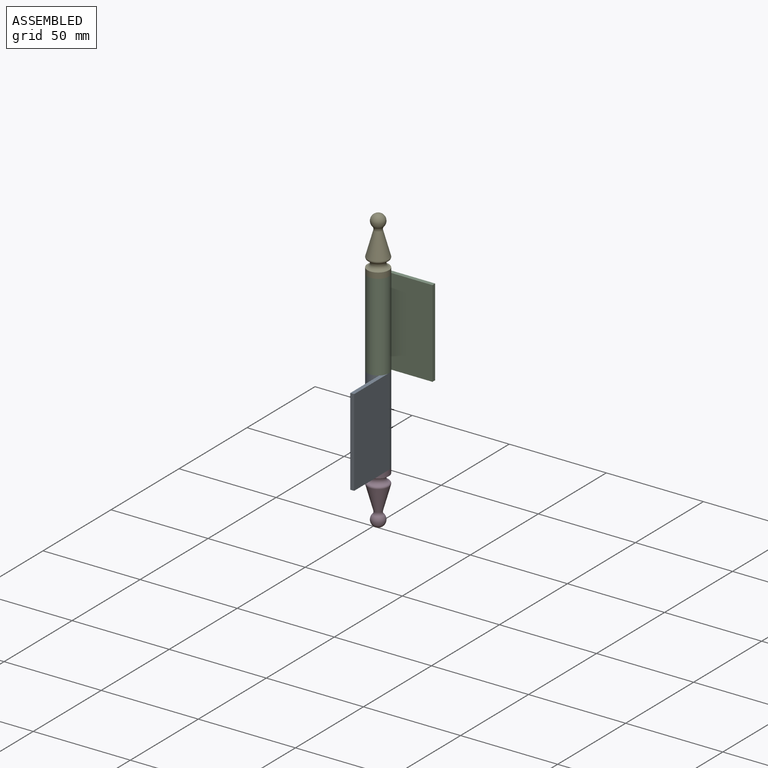
[diagram: assembled view]
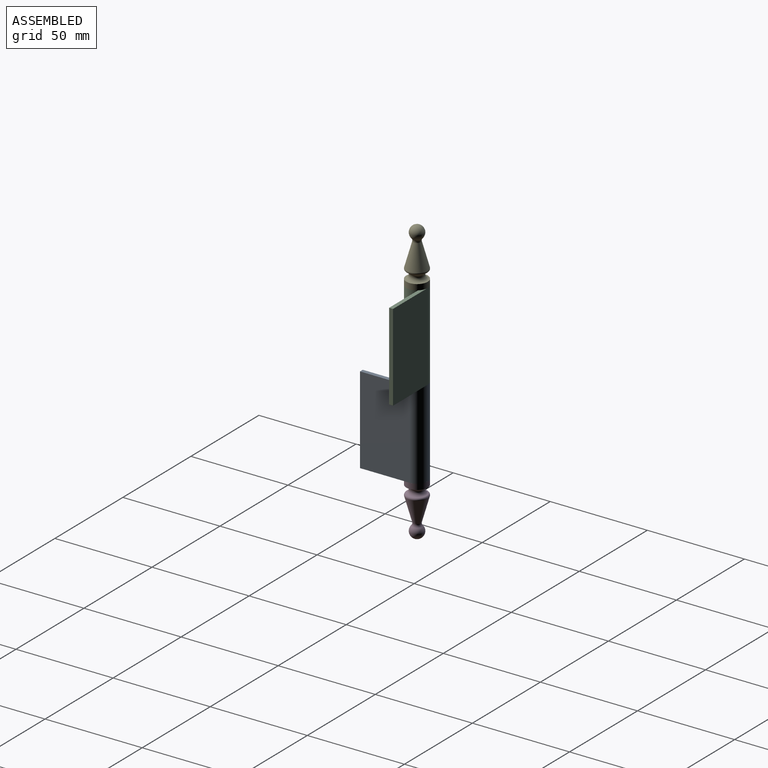
[diagram: assembled view, second angle]
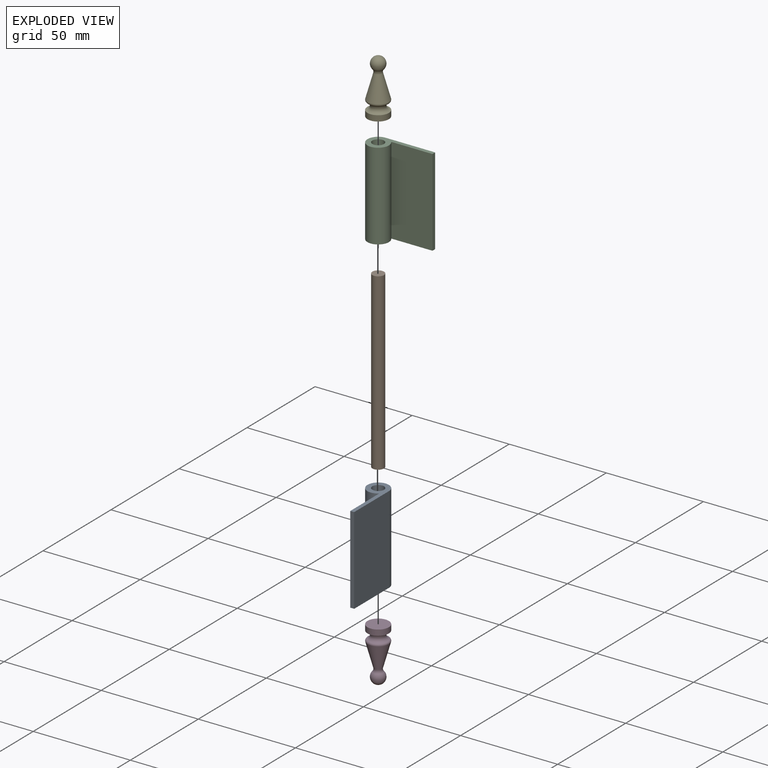
[diagram: exploded view]
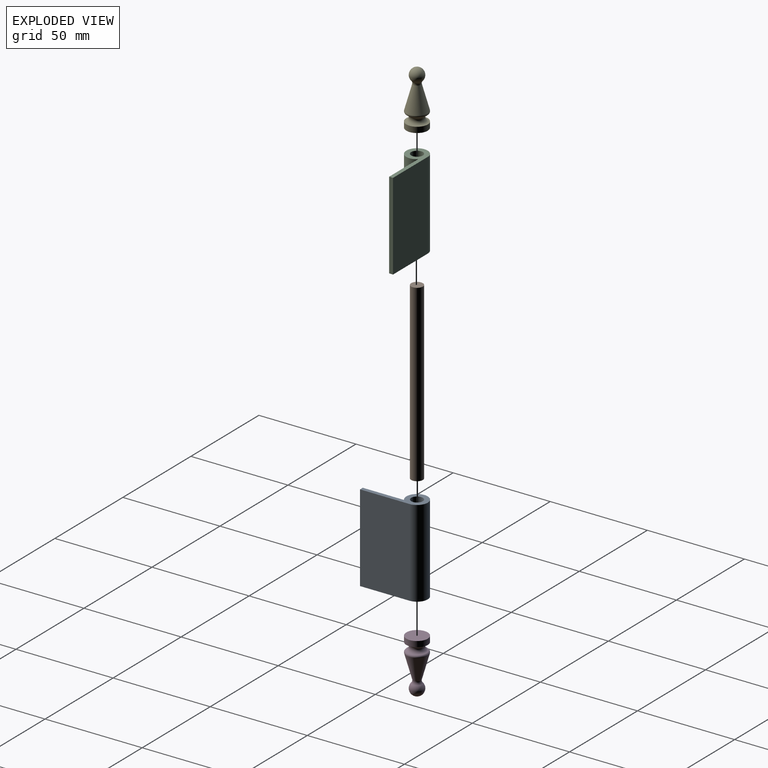
[diagram: exploded view, second angle]
FCSTD DOCUMENT  (FreeCAD 2022.709R28846 (Git))
Label: fischband_assembly
License: All rights reserved
LicenseURL: http://en.wikipedia.org/wiki/All_rights_reserved
objects: Part::FeaturePython×21, App::FeaturePython×14, App::Link×5
note: 20 computed .brp shape members not serialized (recipe doc carries the construction recipe); baked Part::Feature solids carry a one-line shape summary decoded from their .brp
EXTERNAL_REF file=fischband_fluegel.FCStd obj=Body
EXTERNAL_REF file=fischband_pin.FCStd obj=Body
EXTERNAL_REF file=fischband_zierelement.FCStd obj=Body

FEATURE [App::Link] Link  label="band_rahmen"
  AutoLinkLabel = true
  AutoPlacement = true
  LinkPlacement = pos=(45,18,0) rot=(0,0,1;4.71239rad)
  LinkedObject = -> <external fischband_fluegel.FCStd>#Body
  Placement = pos=(45,18,0) rot=(0,0,1;4.71239rad)
  ShowElement = false
  SyncGroupVisibility = false
  TreeRank = 1
  _LinkVersion = 1
FEATURE [App::Link] Link001  label="Link001(Body)"
  AutoLinkLabel = true
  AutoPlacement = true
  LinkPlacement = pos=(45,18,0) rot=(0,0,1;0rad)
  LinkedObject = -> <external fischband_pin.FCStd>#Body
  Placement = pos=(45,18,0) rot=(0,0,1;0rad)
  ShowElement = false
  SyncGroupVisibility = false
  TreeRank = 2
  _LinkVersion = 1
FEATURE [App::Link] Link002  label="band_fenster"
  AutoLinkLabel = true
  AutoPlacement = true
  LinkPlacement = pos=(45,18,45) rot=(0,0,1;0rad)
  LinkedObject = -> <external fischband_fluegel.FCStd>#Body
  Placement = pos=(45,18,45) rot=(0,0,1;0rad)
  ShowElement = false
  SyncGroupVisibility = false
  TreeRank = 32
  _LinkVersion = 1
FEATURE [App::Link] Link003  label="zierelement_unten"
  AutoLinkLabel = false
  AutoPlacement = true
  LinkPlacement = pos=(45,18,0) rot=(0,0,1;0rad)
  LinkedObject = -> <external fischband_zierelement.FCStd>#Body
  Placement = pos=(45,18,0) rot=(0,0,1;0rad)
  ShowElement = false
  SyncGroupVisibility = false
  TreeRank = 52
  _LinkOwner = 4058
  _LinkVersion = 1
FEATURE [App::Link] Link004  label="zierelement_oben"
  AutoLinkLabel = true
  AutoPlacement = true
  LinkPlacement = pos=(45,18,90) rot=(-1,0,0;3.14159rad)
  LinkedObject = -> <external fischband_zierelement.FCStd>#Body
  Placement = pos=(45,18,90) rot=(-1,0,0;3.14159rad)
  ShowElement = false
  SyncGroupVisibility = false
  TreeRank = 72
  _LinkVersion = 1
FEATURE [Part::FeaturePython] Parts  # WARN: FeaturePython — macro-defined, semantics opaque (R4)
  Group = -> [Link001,Link,Link002,Link003,Link004]
  GroupMode = 0
  TreeRank = 0
  _LinkVersion = 1
FEATURE [Part::FeaturePython] Assembly  # WARN: FeaturePython — macro-defined, semantics opaque (R4)
  AutoRelax = true
  BuildShape = 0
  Freeze = false
  Group = -> [Constraints,Elements,Parts]
  TreeRank = 0
  Verbose = false
  _LinkVersion = 1
  _SolverType = 1
  _Version = 1
FEATURE [App::FeaturePython] Constraints  # WARN: FeaturePython — macro-defined, semantics opaque (R4)
  Group = -> [Constraint001,Constraint002,Constraint003,Constraint004]
  TreeRank = 0
  _LinkVersion = 1
  _Version = 1
FEATURE [App::FeaturePython] Elements  # WARN: FeaturePython — macro-defined, semantics opaque (R4)
  Group = -> [_Element001,_Element002,_Element004,_Element005,_Element,_Element006,_Element007,_Element008,_Element009,_Element010,_Element011,Element,Element001,Element002,Element003,Element004,Element005,Element006,Element007]
  TreeRank = 0
  _LinkVersion = 1
FEATURE [Part::FeaturePython] _Element001  # link proxy (typed FeaturePython)
  Detach = false
  LinkTransform = true
  LinkedObject = -> Link001 [Pad.Edge2]
  TreeRank = 14
  _LinkVersion = 1
  _Parent = -> Elements
FEATURE [Part::FeaturePython] _Element002  # link proxy (typed FeaturePython)
  Detach = false
  LinkTransform = true
  LinkedObject = -> Link [Pad.Edge14]
  TreeRank = 15
  _LinkVersion = 1
  _Parent = -> Elements
FEATURE [Part::FeaturePython] _Element004  # WARN: FeaturePython — macro-defined, semantics opaque (R4)
  Detach = false
  LinkTransform = true
  TreeRank = 31
  _LinkVersion = 1
  _Parent = -> Elements
FEATURE [Part::FeaturePython] _Element005  # link proxy (typed FeaturePython)
  Detach = false
  LinkTransform = true
  LinkedObject = -> Link002 [Pad.Edge15]
  TreeRank = 38
  _LinkVersion = 1
  _Parent = -> Elements
FEATURE [Part::FeaturePython] _Element  # link proxy (typed FeaturePython)
  Detach = false
  LinkTransform = true
  LinkedObject = -> Link002 [Pad.Edge14]
  TreeRank = 55
  _LinkVersion = 1
  _Parent = -> Elements
FEATURE [Part::FeaturePython] _Element006  # link proxy (typed FeaturePython)
  Detach = false
  LinkTransform = true
  LinkedObject = -> Link001 [Pad.Edge3]
  TreeRank = 57
  _LinkVersion = 1
  _Parent = -> Elements
FEATURE [Part::FeaturePython] _Element007  # link proxy (typed FeaturePython)
  Detach = false
  LinkTransform = true
  LinkedObject = -> Link001 [Pad.Face1]
  TreeRank = 60
  _LinkVersion = 1
  _Parent = -> Elements
FEATURE [App::FeaturePython] Constraint001  label="PlaneCoincident"  # WARN: FeaturePython — macro-defined, semantics opaque (R4)
  Angle = 0
  AnglePitch = 0
  AngleRoll = 0
  Cascade = false
  Disabled = false
  Group = -> [ElementLink001,ElementLink002]
  LockAngle = false
  Multiply = false
  OffsetX = 0
  OffsetY = 0
  TreeRank = 61
  _ConstraintType = 35
  _LinkVersion = 1
  _Parent = -> Constraints
FEATURE [App::FeaturePython] ElementLink001  label="_Element001"  # link proxy (typed FeaturePython)
  LinkTransform = true
  LinkedObject = -> _Element001
  TreeRank = 62
  _LinkVersion = 1
  _Parent = -> Constraint001
FEATURE [App::FeaturePython] ElementLink002  label="_Element002"  # link proxy (typed FeaturePython)
  LinkTransform = true
  LinkedObject = -> _Element002
  TreeRank = 63
  _LinkVersion = 1
  _Parent = -> Constraint001
FEATURE [App::FeaturePython] Constraint002  label="PlaneCoincident001"  # WARN: FeaturePython — macro-defined, semantics opaque (R4)
  Angle = 0
  AnglePitch = 0
  AngleRoll = 0
  Cascade = false
  Disabled = false
  Group = -> [ElementLink003,ElementLink004]
  LockAngle = false
  Multiply = false
  OffsetX = 0
  OffsetY = 0
  TreeRank = 64
  _ConstraintType = 35
  _LinkVersion = 1
  _Parent = -> Constraints
FEATURE [App::FeaturePython] ElementLink003  label="_Element005"  # link proxy (typed FeaturePython)
  LinkTransform = true
  LinkedObject = -> _Element005
  TreeRank = 65
  _LinkVersion = 1
  _Parent = -> Constraint002
FEATURE [App::FeaturePython] ElementLink004  label="_Element006"  # link proxy (typed FeaturePython)
  LinkTransform = true
  LinkedObject = -> _Element006
  TreeRank = 66
  _LinkVersion = 1
  _Parent = -> Constraint002
FEATURE [App::FeaturePython] Constraint003  label="PlaneCoincident002"  # WARN: FeaturePython — macro-defined, semantics opaque (R4)
  Angle = 0
  AnglePitch = 0
  AngleRoll = 0
  Cascade = false
  Disabled = false
  Group = -> [ElementLink005,ElementLink006]
  LockAngle = false
  Multiply = false
  OffsetX = 0
  OffsetY = 0
  TreeRank = 67
  _ConstraintType = 35
  _LinkVersion = 1
  _Parent = -> Constraints
FEATURE [App::FeaturePython] ElementLink005  label="_Element008"  # link proxy (typed FeaturePython)
  LinkTransform = true
  LinkedObject = -> _Element008
  TreeRank = 68
  _LinkVersion = 1
  _Parent = -> Constraint003
FEATURE [Part::FeaturePython] _Element008  # link proxy (typed FeaturePython)
  Detach = false
  LinkTransform = true
  LinkedObject = -> Link [Pad.Edge6]
  TreeRank = 69
  _LinkVersion = 1
  _Parent = -> Elements
FEATURE [App::FeaturePython] ElementLink006  label="_Element009"  # link proxy (typed FeaturePython)
  LinkTransform = true
  LinkedObject = -> _Element009
  TreeRank = 70
  _LinkVersion = 1
  _Parent = -> Constraint003
FEATURE [Part::FeaturePython] _Element009  # link proxy (typed FeaturePython)
  Detach = false
  LinkTransform = true
  LinkedObject = -> Link003 [Revolution.Edge2]
  TreeRank = 71
  _LinkVersion = 1
  _Parent = -> Elements
FEATURE [App::FeaturePython] Constraint004  label="PlaneCoincident003"  # WARN: FeaturePython — macro-defined, semantics opaque (R4)
  Angle = 0
  AnglePitch = 0
  AngleRoll = 0
  Cascade = false
  Disabled = false
  Group = -> [ElementLink007,ElementLink008]
  LockAngle = false
  Multiply = false
  OffsetX = 0
  OffsetY = 0
  TreeRank = 73
  _ConstraintType = 35
  _LinkVersion = 1
  _Parent = -> Constraints
FEATURE [App::FeaturePython] ElementLink007  label="_Element010"  # link proxy (typed FeaturePython)
  LinkTransform = true
  LinkedObject = -> _Element010
  TreeRank = 74
  _LinkVersion = 1
  _Parent = -> Constraint004
FEATURE [Part::FeaturePython] _Element010  # link proxy (typed FeaturePython)
  Detach = false
  LinkTransform = true
  LinkedObject = -> Link004 [Revolution.Edge2]
  TreeRank = 75
  _LinkVersion = 1
  _Parent = -> Elements
FEATURE [App::FeaturePython] ElementLink008  label="_Element011"  # link proxy (typed FeaturePython)
  LinkTransform = true
  LinkedObject = -> _Element011
  TreeRank = 76
  _LinkVersion = 1
  _Parent = -> Constraint004
FEATURE [Part::FeaturePython] _Element011  # link proxy (typed FeaturePython)
  Detach = false
  LinkTransform = true
  LinkedObject = -> Link002 [Pad.Edge7]
  TreeRank = 77
  _LinkVersion = 1
  _Parent = -> Elements
FEATURE [Part::FeaturePython] Element  # link proxy (typed FeaturePython)
  Detach = false
  LinkTransform = true
  LinkedObject = -> Link [Pad.Face3]
  TreeRank = 78
  _LinkVersion = 1
  _Parent = -> Elements
FEATURE [Part::FeaturePython] Element001  # link proxy (typed FeaturePython)
  Detach = false
  LinkTransform = true
  LinkedObject = -> Link [Pad.Face4]
  TreeRank = 79
  _LinkVersion = 1
  _Parent = -> Elements
FEATURE [Part::FeaturePython] Element002  # link proxy (typed FeaturePython)
  Detach = false
  LinkTransform = true
  LinkedObject = -> Link002 [Pad.Edge3]
  TreeRank = 80
  _LinkVersion = 1
  _Parent = -> Elements
FEATURE [Part::FeaturePython] Element003  # link proxy (typed FeaturePython)
  Detach = false
  LinkTransform = true
  LinkedObject = -> Link002 [Pad.Face4]
  TreeRank = 81
  _LinkVersion = 1
  _Parent = -> Elements
FEATURE [Part::FeaturePython] Element004  # link proxy (typed FeaturePython)
  Detach = false
  LinkTransform = true
  LinkedObject = -> Link002 [Pad.Edge2]
  TreeRank = 82
  _LinkVersion = 1
  _Parent = -> Elements
FEATURE [Part::FeaturePython] Element005  # link proxy (typed FeaturePython)
  Detach = false
  LinkTransform = true
  LinkedObject = -> Link [Pad.Edge8]
  TreeRank = 83
  _LinkVersion = 1
  _Parent = -> Elements
FEATURE [Part::FeaturePython] Element006  # link proxy (typed FeaturePython)
  Detach = false
  LinkTransform = true
  LinkedObject = -> Link002 [Pad.Edge9]
  TreeRank = 84
  _LinkVersion = 1
  _Parent = -> Elements
FEATURE [Part::FeaturePython] Element007  # link proxy (typed FeaturePython)
  Detach = false
  LinkTransform = true
  LinkedObject = -> Link [Pad.Edge9]
  TreeRank = 85
  _LinkVersion = 1
  _Parent = -> Elements

RESOLVED EXTERNAL PARTS (link-assembly join: the EXTERNAL_REF files above that resolve inside this repo's crawl, each included once):
---- part fischband_fluegel.FCStd = doc fcstd_a1fa05b8112c ----
FCSTD DOCUMENT  (FreeCAD 2022.709R28846 (Git))
Label: fischband_fluegel
License: All rights reserved
LicenseURL: http://en.wikipedia.org/wiki/All_rights_reserved
objects: Sketcher::SketchObject×1, PartDesign::Pad×1, PartDesign::Body×1
note: 5 computed .brp shape members not serialized (recipe doc carries the construction recipe); baked Part::Feature solids carry a one-line shape summary decoded from their .brp

FEATURE [Sketcher::SketchObject] Sketch
  ArcFitTolerance = 1e-06
  AttachmentSupport = -> [XY_Plane]
  FullyConstrained = true
  MapMode = 5
  Support = -> [XY_Plane]
  TreeRank = 13
  sketch-geometry (6):
    g0: ArcOfCircle CenterX=0 CenterY=0 CenterZ=0 NormalX=0 NormalY=0 NormalZ=1 AngleXU=0 Radius=5.5 StartAngle=1.5708 EndAngle=6.97296
    g1: Circle CenterX=0 CenterY=0 CenterZ=0 NormalX=0 NormalY=0 NormalZ=1 AngleXU=0 Radius=3
    g2: LineSegment StartX=0 StartY=5.5 StartZ=0 EndX=25.5 EndY=5.5 EndZ=0
    g3: LineSegment StartX=25.5 StartY=5.5 StartZ=0 EndX=25.5 EndY=3.5 EndZ=0
    g4: LineSegment StartX=25.5 StartY=3.5 StartZ=0 EndX=4.24264 EndY=3.5 EndZ=0
    g5: LineSegment [constr] StartX=5.5 StartY=-2.95389e-05 StartZ=0 EndX=5.5 EndY=5.5 EndZ=0
  constraints (18):
    c: Coincident(g0,g-1)
    c: Radius(g0) = 5.5
    c: Coincident(g1,g0)
    c: Radius(g1) = 3
    c: Coincident(g2,g3)
    c: Coincident(g3,g4)
    c: Horizontal(g2)
    c: Horizontal(g4)
    c: Vertical(g3)
    c: Coincident(g0,g2)
    c: Coincident(g0,g4)
    c: DistanceY(g3,g3) = 2
    c: PointOnObject(g0,g-2)
    c: PointOnObject(g5,g0)
    c: PointOnObject(g5,g2)
    c: Vertical(g5)
    c: Tangent(g5,g0)
    c: DistanceX(g5,g2) = 20
FEATURE [PartDesign::Pad] Pad
  ClaimChildren = false
  Direction = (0,0,1)
  Fit = 0
  FitJoin = 0
  InnerFit = 0
  InnerFitJoin = 0
  InnerTaperAngle = 0
  InnerTaperAngleRev = 0
  Length = 45
  Length2 = 100
  Linearize = true
  NewSolid = false
  Profile = -> Sketch
  Suppress = false
  TreeRank = 14
  Type = 0
  _ProfileBasedVersion = 1
FEATURE [PartDesign::Body] Body
  AutoGroupSolids = false
  ClaimAllChildren = false
  ExportMode = 0
  Group = -> [Sketch,Pad]
  Origin = -> Origin
  Tip = -> Pad
  TreeRank = 12
  _ExportChildren = -> [Pad]
  _GroupVersion = 1
---- part fischband_pin.FCStd = doc fcstd_d5e28c1ab33c ----
FCSTD DOCUMENT  (FreeCAD 2022.709R28846 (Git))
Label: fischband_pin
License: All rights reserved
LicenseURL: http://en.wikipedia.org/wiki/All_rights_reserved
objects: Sketcher::SketchObject×1, PartDesign::Pad×1, PartDesign::Body×1
note: 5 computed .brp shape members not serialized (recipe doc carries the construction recipe); baked Part::Feature solids carry a one-line shape summary decoded from their .brp

FEATURE [Sketcher::SketchObject] Sketch
  ArcFitTolerance = 1e-06
  AttachmentSupport = -> [XY_Plane]
  FullyConstrained = true
  MapMode = 5
  Support = -> [XY_Plane]
  TreeRank = 13
  sketch-geometry (1):
    g0: Circle CenterX=0 CenterY=0 CenterZ=0 NormalX=0 NormalY=0 NormalZ=1 AngleXU=0 Radius=3
  constraints (2):
    c: Coincident(g0,g-1)
    c: Radius(g0) = 3
FEATURE [PartDesign::Pad] Pad
  ClaimChildren = false
  Direction = (0,0,1)
  Fit = 0
  FitJoin = 0
  InnerFit = 0
  InnerFitJoin = 0
  InnerTaperAngle = 0
  InnerTaperAngleRev = 0
  Length = 90
  Length2 = 100
  Linearize = true
  NewSolid = false
  Profile = -> Sketch
  Suppress = false
  TreeRank = 14
  Type = 0
  _ProfileBasedVersion = 1
FEATURE [PartDesign::Body] Body
  AutoGroupSolids = false
  ClaimAllChildren = false
  ExportMode = 0
  Group = -> [Sketch,Pad]
  Origin = -> Origin
  Tip = -> Pad
  TreeRank = 12
  _ExportChildren = -> [Pad]
  _GroupVersion = 1
---- part fischband_zierelement.FCStd = doc fcstd_0be9b1c01ecd ----
FCSTD DOCUMENT  (FreeCAD 2022.709R28846 (Git))
Label: fischband_zierelement
License: All rights reserved
LicenseURL: http://en.wikipedia.org/wiki/All_rights_reserved
objects: Sketcher::SketchObject×1, PartDesign::Revolution×1, PartDesign::Body×1
note: 5 computed .brp shape members not serialized (recipe doc carries the construction recipe); baked Part::Feature solids carry a one-line shape summary decoded from their .brp

FEATURE [Sketcher::SketchObject] Sketch
  ArcFitTolerance = 1e-06
  AttachmentSupport = -> [XZ_Plane]
  FullyConstrained = true
  MapMode = 5
  Placement = pos=(0,0,0) rot=(1,0,0;1.5708rad)
  Support = -> [XZ_Plane]
  TreeRank = 13
  sketch-geometry (9):
    g0: LineSegment StartX=0 StartY=0 StartZ=0 EndX=0 EndY=-28 EndZ=0
    g1: LineSegment StartX=5.46337 StartY=-8.011 StartZ=0 EndX=2.07327 EndY=-20.1887 EndZ=0
    g2: ArcOfCircle CenterX=0 CenterY=-24.5 CenterZ=0 NormalX=0 NormalY=0 NormalZ=1 AngleXU=0 Radius=3.5 StartAngle=4.71239 EndAngle=7.03964
    g3: ArcOfCircle CenterX=5.5 CenterY=-4.91438 CenterZ=0 NormalX=0 NormalY=0 NormalZ=1 AngleXU=0 Radius=2 StartAngle=1.5708 EndAngle=4.37255
    g4: ArcOfCircle CenterX=4.5 CenterY=-7.74281 CenterZ=0 NormalX=0 NormalY=0 NormalZ=1 AngleXU=0 Radius=1 StartAngle=6.01167 EndAngle=7.51414
    g5: ArcOfCircle CenterX=4 CenterY=-20.7251 CenterZ=0 NormalX=0 NormalY=0 NormalZ=1 AngleXU=0 Radius=2 StartAngle=2.87008 EndAngle=3.89805
    g6: LineSegment StartX=5.5 StartY=-2.91438 StartZ=0 EndX=5.5 EndY=0 EndZ=0
    g7: LineSegment StartX=5.5 StartY=0 StartZ=0 EndX=0 EndY=0 EndZ=0
    g8: LineSegment [constr] StartX=5.5 StartY=0 StartZ=0 EndX=5.5 EndY=-10 EndZ=0
  constraints (26):
    c: Vertical(g0)
    c: Coincident(g2,g0)
    c: Radius(g2) = 3.5
    c: DistanceX(g0,g3) = 5.5
    c: Tangent(g1,g4) = 1.5708
    c: Tangent(g2,g5) = 1.5708
    c: Tangent(g1,g5) = -1.5708
    c: Radius(g5) = 2
    c: Radius(g4) = 1
    c: Radius(g3) = 2
    c: DistanceX(g0,g5) = 4
    c: Tangent(g3,g4) = 1.5708
    c: PointOnObject(g2,g0)
    c: Coincident(g6,g7)
    c: Horizontal(g7)
    c: Vertical(g6)
    c: DistanceY(g0,g7) = 28
    c: DistanceY(g3,g7) = 6.8
    c: Coincident(g0,g7)
    c: Coincident(g3,g6)
    c: Coincident(g0,g-1)
    c: Coincident(g8,g6)
    c: Vertical(g8)
    c: Tangent(g8,g4)
    c: PointOnObject(g3,g8)
    c: DistanceY(g8,g8) = 10
FEATURE [PartDesign::Revolution] Revolution
  Angle = 360
  Axis = (0,-2e-16,1)
  Base = (0,0,0)
  ClaimChildren = false
  Fit = 0
  FitJoin = 0
  InnerFit = 0
  InnerFitJoin = 0
  NewSolid = false
  Placement = pos=(0,0,0) rot=(1,0,0;1.5708rad)
  Profile = -> Sketch
  ReferenceAxis = -> Sketch [V_Axis]
  Refine = true
  Reversed = true
  Suppress = false
  TreeRank = 14
  _ProfileBasedVersion = 1
FEATURE [PartDesign::Body] Body
  AutoGroupSolids = false
  ClaimAllChildren = false
  ExportMode = 0
  Group = -> [Sketch,Revolution]
  Origin = -> Origin
  Tip = -> Revolution
  TreeRank = 12
  _ExportChildren = -> [Revolution]
  _GroupVersion = 1
